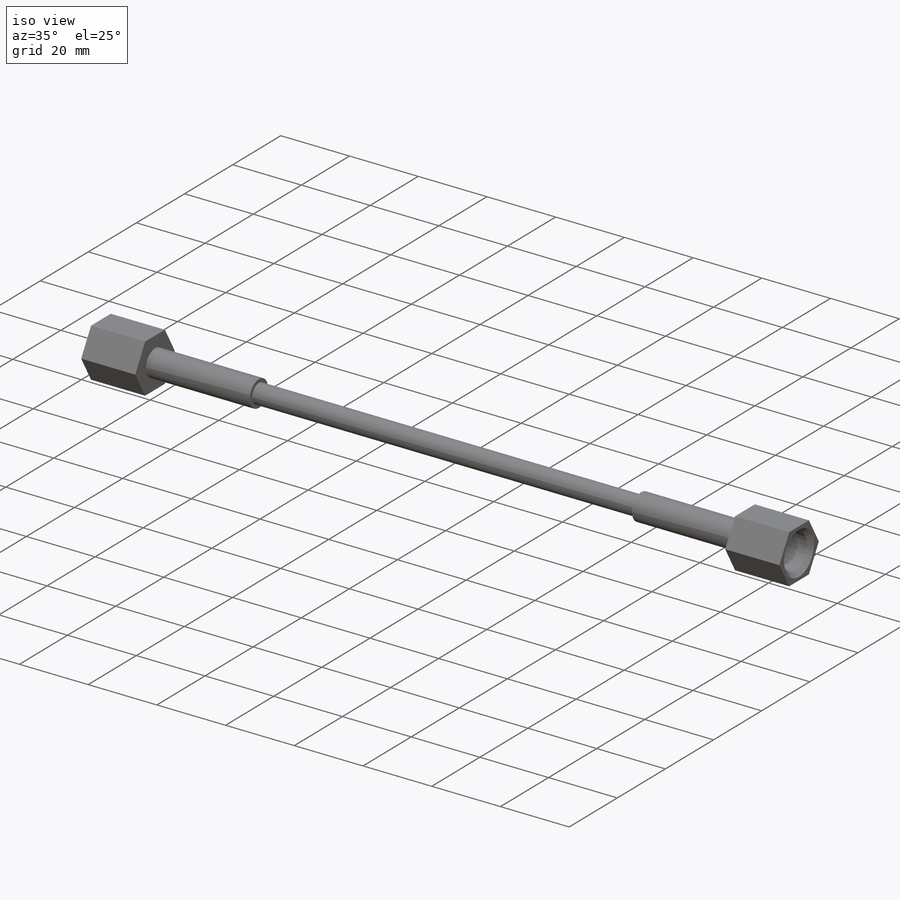
[diagram: iso view]
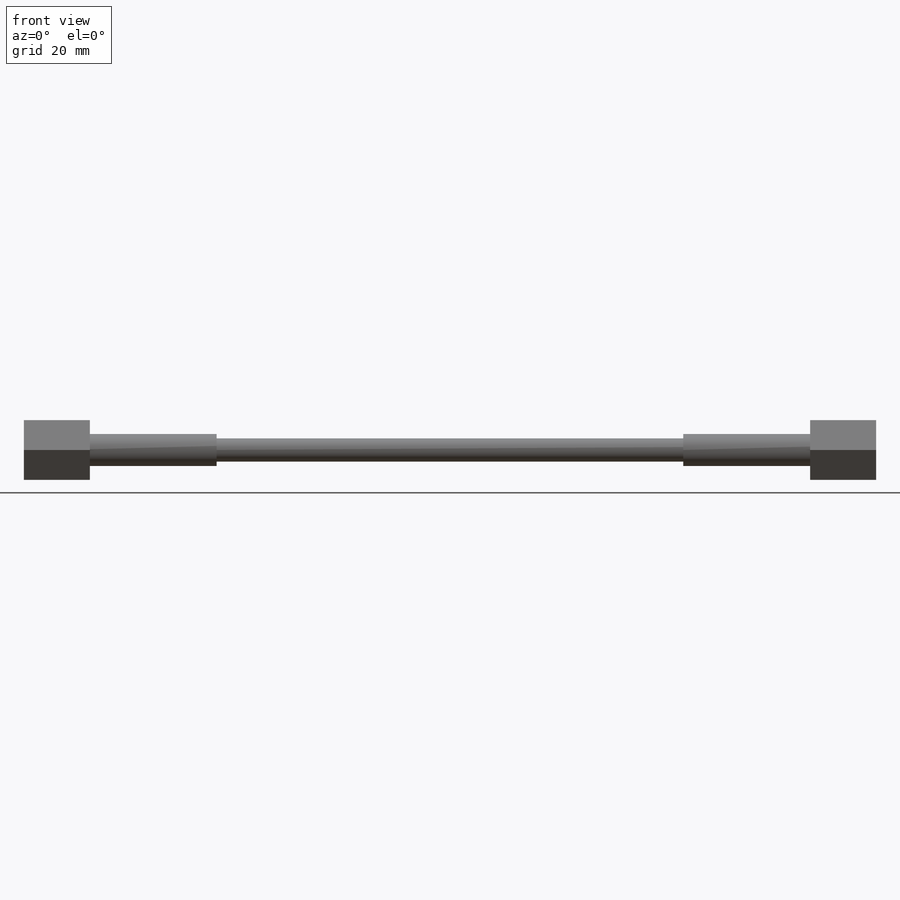
[diagram: front view]
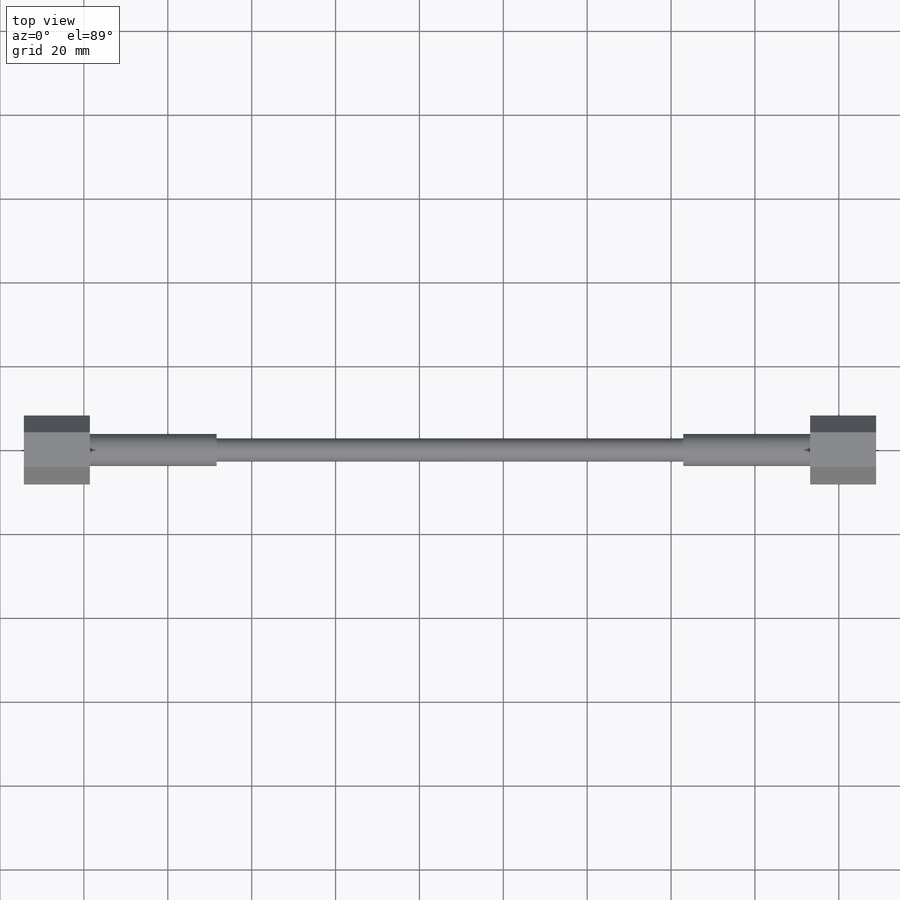
[diagram: top view]
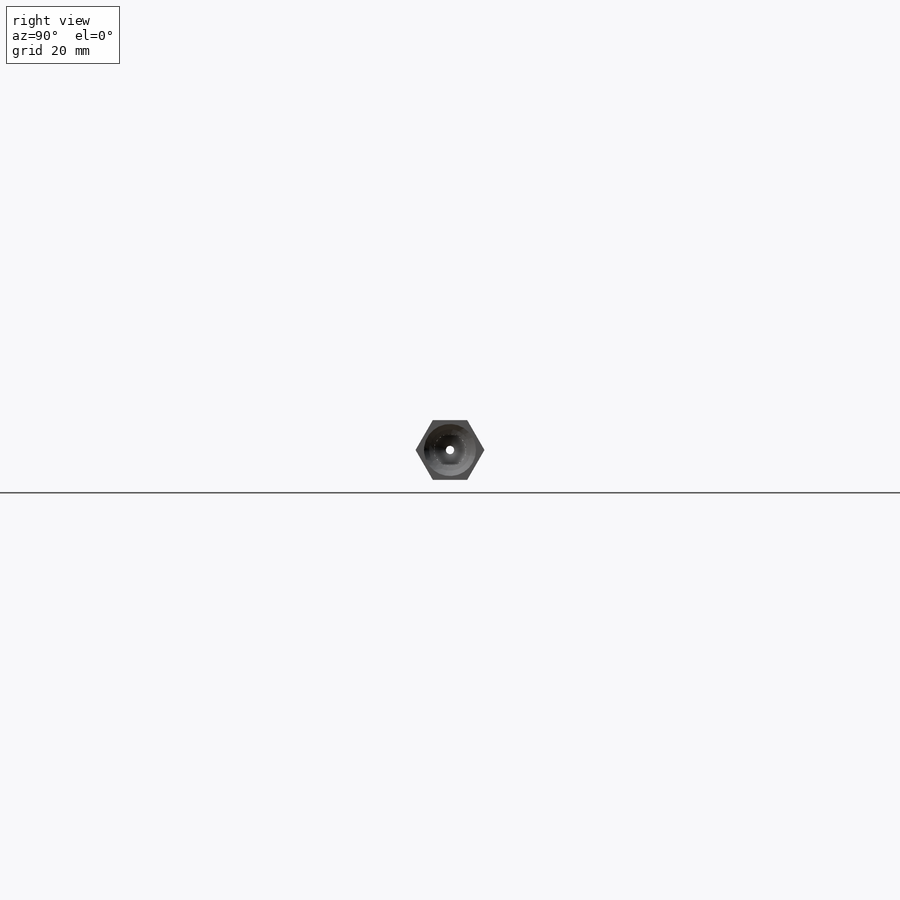
[diagram: right view]
SOLIDWORKS PART (.sldprt)
format: sldprt  version: not decoded by parser v0  size: 205,824 bytes
history: native  units: mm
features: sketch x4, plane x3, material x1, extrude x1, hole x1, chamfer x1, revolve x1, mirror x1 (+11 scaffold rows collapsed)
feature tree (24):
  scaffold x11  (default folders/planes/origin — collapsed)
  material  "Alloy Steel"
  plane  "Plane5"  Offset=6.858mm
  sketch  "Sketch5"  dims[c1.D1=14.224mm c1.D2=~8.21223mm c2.D1=14.224mm]
  extrude  "Extrude2"  Depth=15.748mm
  hole  "Hole2"  Diameter=7.6708mm Depth=15.748mm
  sketch  "Sketch7"
  sketch  "Sketch6"  dims[Diameter=7.6708mm Depth=15.748mm C-Drill Diameter=~9.92124mm C-Drill Depth=8.89mm C-Drill Angle=118.0deg]
  chamfer  "Chamfer2"  Distance=1.240155mm Angle=45deg
  plane  "Plane4"
  sketch  "Sketch8"  dims[c1.D1=101.6mm c1.D2=119.38mm c2.D1=101.6mm c2.D2=1.9812mm c2.D3=5.5372mm c2.D4=7.62mm c2.D5=~3.289206mm c3.D5=59.0deg c3.D6=~29.364571mm c3.D7=1.0414mm c4.D6=30.226mm c4.D7=~11.275314mm]
  revolve  "Revolve2"  Angle=360deg
  plane  "Plane6"
  mirror  "Mirror2"
decode coverage: 7 of 9 modeling features carry decoded parameters
note: ~ marks probable driven/reference dimensions
note: suppression state not decoded; provenance and decode notes live in map.json
